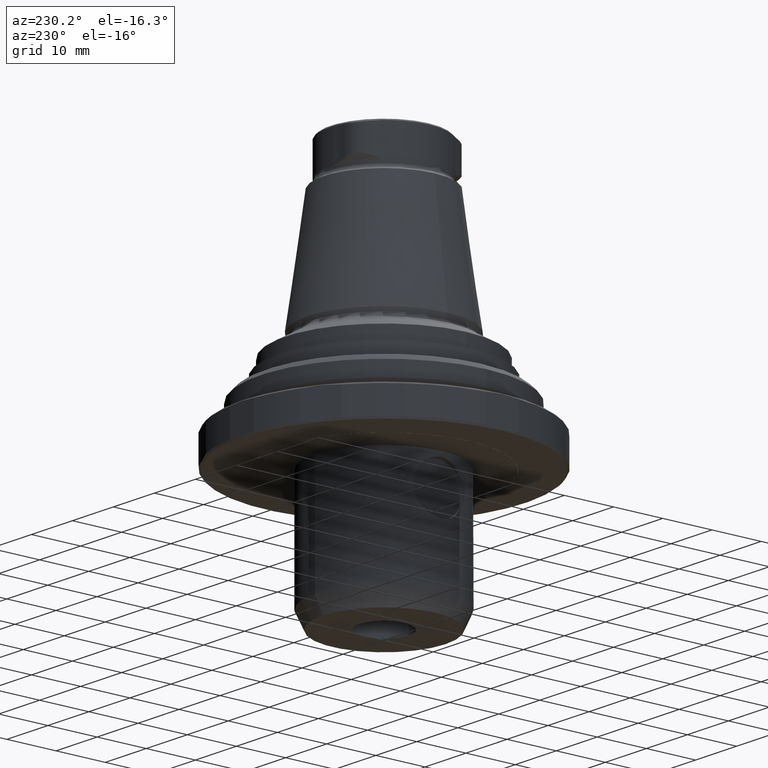
[diagram: clean part render]
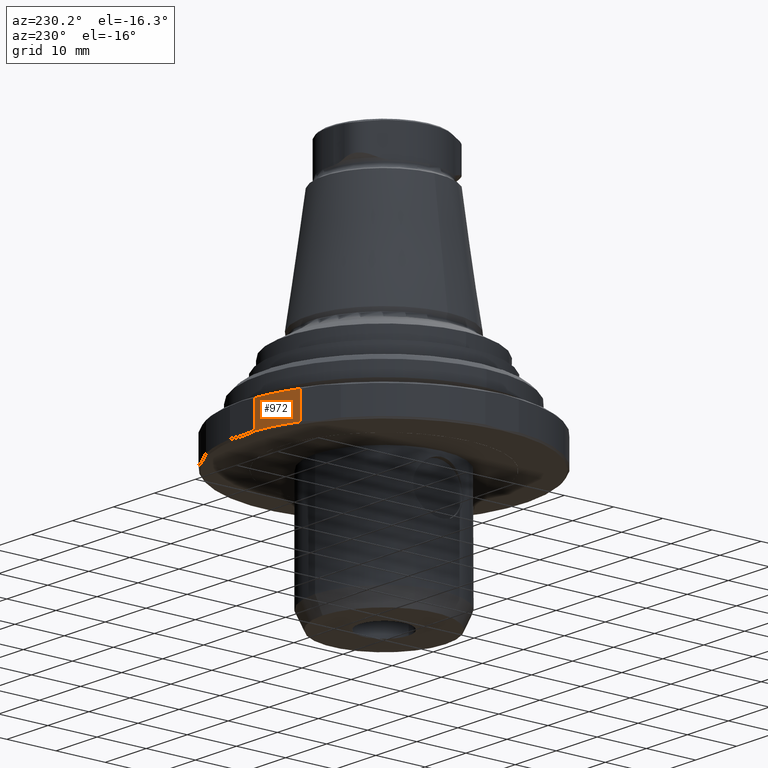
[diagram: same view with one face highlighted and labeled with its STEP entity id]
A machine part, auxiliary view. The second image highlights one B-rep face of the part: STEP entity #972.
In plain terms, the highlighted cylindrical surface (partial cylindrical patch) has radius 29 mm, axis along (-0, -0, -1).
Its self-contained STEP definition (entity closure, byte-faithful):
#54=LINE('',#1739,#82);
#69=LINE('',#1823,#97);
#82=VECTOR('',#1301,1000.);
#97=VECTOR('',#1358,1000.);
#150=CIRCLE('',#1072,29.);
#164=CIRCLE('',#1102,29.);
#387=ORIENTED_EDGE('',*,*,#500,.T.);
#388=ORIENTED_EDGE('',*,*,#544,.T.);
#389=ORIENTED_EDGE('',*,*,#545,.F.);
#390=ORIENTED_EDGE('',*,*,#514,.T.);
#500=EDGE_CURVE('',#610,#609,#150,.T.);
#514=EDGE_CURVE('',#623,#610,#54,.F.);
#544=EDGE_CURVE('',#609,#638,#69,.T.);
#545=EDGE_CURVE('',#623,#638,#164,.T.);
#609=VERTEX_POINT('',#1689);
#610=VERTEX_POINT('',#1691);
#623=VERTEX_POINT('',#1740);
#638=VERTEX_POINT('',#1822);
#767=EDGE_LOOP('',(#387,#388,#389,#390));
#867=FACE_BOUND('',#767,.T.);
#913=CYLINDRICAL_SURFACE('',#1101,29.);
#972=ADVANCED_FACE('',(#867),#913,.T.);
#1072=AXIS2_PLACEMENT_3D('',#1690,#1285,#1286);
#1101=AXIS2_PLACEMENT_3D('',#1824,#1359,#1360);
#1102=AXIS2_PLACEMENT_3D('',#1825,#1361,#1362);
#1285=DIRECTION('',(-5.20001084984554E-33,-4.76419527885826E-18,-1.));
#1286=DIRECTION('',(-1.,0.,0.));
#1301=DIRECTION('',(-5.20001084984554E-33,-4.76419527885826E-18,-1.));
#1358=DIRECTION('',(-5.20001084984554E-33,-4.76419527885826E-18,-1.));
#1359=DIRECTION('',(-5.20001084984554E-33,-4.76419527885826E-18,-1.));
#1360=DIRECTION('',(-1.,0.,0.));
#1361=DIRECTION('',(-5.20001084984554E-33,-4.76419527885826E-18,-1.));
#1362=DIRECTION('',(-1.,0.,0.));
#1689=CARTESIAN_POINT('',(-2.94575966433107,28.85,-1.3));
#1690=CARTESIAN_POINT('',(-1.56000325495366E-33,-1.42925858365748E-18,-1.3));
#1691=CARTESIAN_POINT('',(-11.4555136271329,26.6415316289918,-1.3));
#1739=CARTESIAN_POINT('',(-11.4555136271329,26.6415316289918,-1.));
#1740=CARTESIAN_POINT('',(-11.4555136271329,26.6415316289918,-6.7));
#1822=CARTESIAN_POINT('',(-2.94575966433107,28.85,-6.7));
#1823=CARTESIAN_POINT('',(-2.94575966433107,28.85,-1.));
#1824=CARTESIAN_POINT('',(0.,0.,-1.));
#1825=CARTESIAN_POINT('',(-2.96400618441196E-32,-2.7155913089492E-17,-6.7));